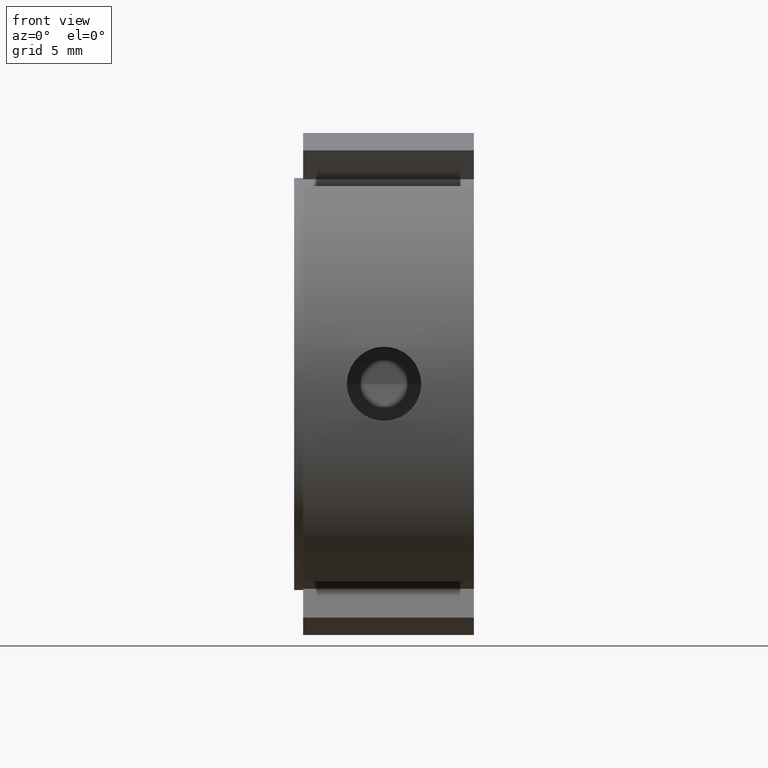
[diagram: clean part render]
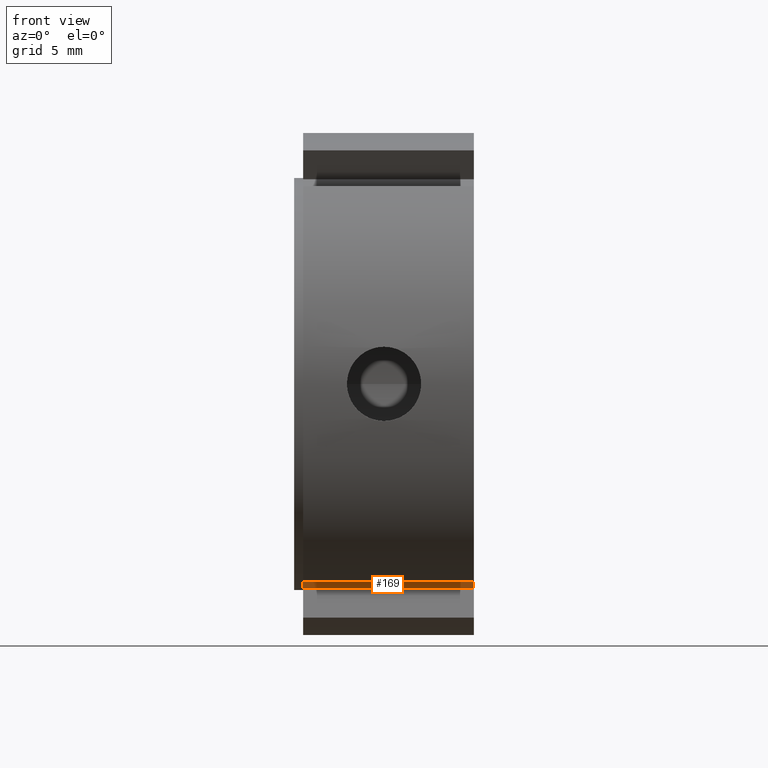
[diagram: same view with one face highlighted and labeled with its STEP entity id]
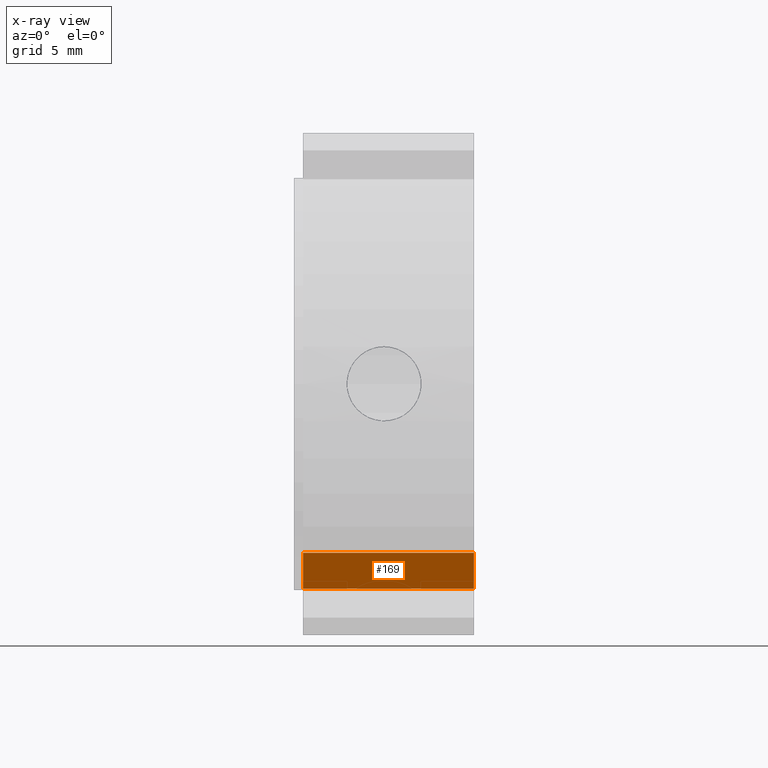
[diagram: x-ray of the same camera — body ghosted, the highlighted face saturated]
A machine part, front view. The second image highlights one B-rep face of the part: STEP entity #169.
The next image is the same camera in x-ray: the body ghosted, the highlighted face saturated — about 0% of this face is hidden behind the body in this view.
In plain terms, the highlighted planar face has unit normal (0, 0.5, 0.866).
Its self-contained STEP definition (entity closure, byte-faithful):
#73=CARTESIAN_POINT('',(0.499999999999997,-7.732050807568882,-9.392304845413261));
#74=VERTEX_POINT('',#73);
#83=CARTESIAN_POINT('',(9.999999999999996,-7.732050807568882,-9.392304845413261));
#84=VERTEX_POINT('',#83);
#85=CARTESIAN_POINT('',(9.999999999999996,-7.732050807568882,-9.392304845413261));
#86=DIRECTION('',(-1.0,0.0,0.0));
#87=VECTOR('',#86,9.499999999999998);
#88=LINE('',#85,#87);
#89=EDGE_CURVE('',#84,#74,#88,.T.);
#115=CARTESIAN_POINT('',(0.499999999999997,-4.267949192431128,-11.392304845413260));
#116=VERTEX_POINT('',#115);
#131=CARTESIAN_POINT('',(9.999999999999996,-4.267949192431128,-11.392304845413260));
#132=VERTEX_POINT('',#131);
#139=CARTESIAN_POINT('',(9.999999999999996,-4.267949192431128,-11.392304845413260));
#140=DIRECTION('',(-1.0,0.0,0.0));
#141=VECTOR('',#140,9.499999999999998);
#142=LINE('',#139,#141);
#143=EDGE_CURVE('',#132,#116,#142,.T.);
#148=CARTESIAN_POINT('',(9.999999999999996,-4.267949192431128,-11.392304845413260));
#149=DIRECTION('',(0.0,0.500000000000001,0.866025403784438));
#150=DIRECTION('',(0.0,-0.866025403784438,0.500000000000000));
#151=AXIS2_PLACEMENT_3D('',#148,#149,#150);
#152=PLANE('',#151);
#153=CARTESIAN_POINT('',(0.499999999999997,-4.267949192431130,-11.392304845413264));
#154=DIRECTION('',(0.0,-0.866025403784438,0.500000000000000));
#155=VECTOR('',#154,4.000000000000001);
#156=LINE('',#153,#155);
#157=EDGE_CURVE('',#116,#74,#156,.T.);
#158=ORIENTED_EDGE('',*,*,#157,.F.);
#159=ORIENTED_EDGE('',*,*,#143,.F.);
#160=CARTESIAN_POINT('',(9.999999999999996,-7.732050807568885,-9.392304845413261));
#161=DIRECTION('',(0.0,0.866025403784438,-0.500000000000001));
#162=VECTOR('',#161,4.000000000000003);
#163=LINE('',#160,#162);
#164=EDGE_CURVE('',#84,#132,#163,.T.);
#165=ORIENTED_EDGE('',*,*,#164,.F.);
#166=ORIENTED_EDGE('',*,*,#89,.T.);
#167=EDGE_LOOP('',(#158,#159,#165,#166));
#168=FACE_OUTER_BOUND('',#167,.T.);
#169=ADVANCED_FACE('',(#168),#152,.F.);